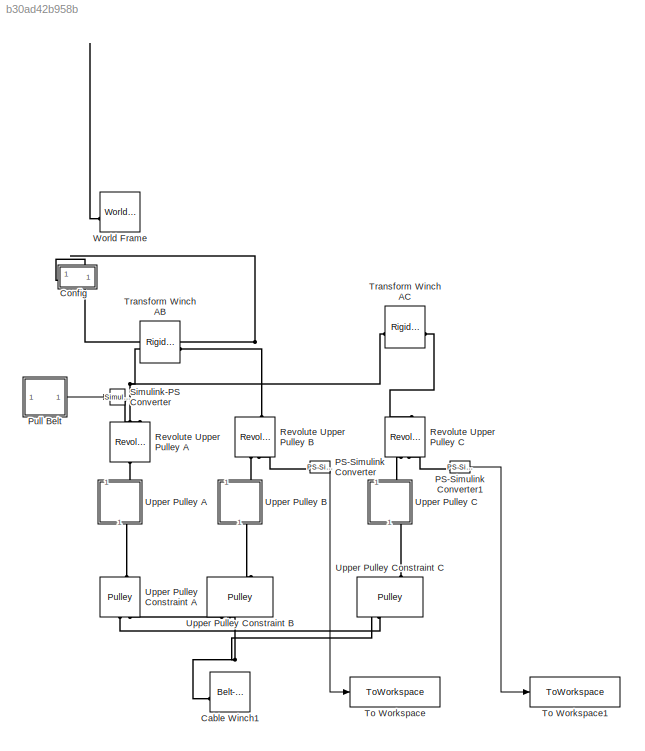
MODEL slx_b30ad42b958b
KIND model
CONFIG AbsTol = auto
CONFIG EnableMultiTasking = off
CONFIG FixedStep = auto
CONFIG MaxStep = 1e-2
CONFIG MinStep = auto
CONFIG RelTol = 1e-3
CONFIG SampleTimeConstraint = Unconstrained
CONFIG SolverName = ode15s
CONFIG StartTime = 0.0
CONFIG StopTime = 10
BLOCK [Reference] Cable Winch1  REF=sm_lib/Belts and Cables/Belt-Cable
Properties
  NameLocation = top
  SourceBlock = sm_lib/Belts and Cables/Belt-Cable\nProperties
  SourceType = Belt-Cable\nProperties
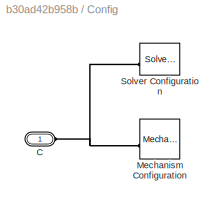
BLOCK [SubSystem] Config
BLOCK [PMIOPort] Config/C
  Side = Left
BLOCK [Reference] Config/Mechanism Configuration  REF=sm_lib/Utilities/Mechanism
Configuration
  SourceBlock = sm_lib/Utilities/Mechanism\nConfiguration
  SourceType = Mechanism\nConfiguration
BLOCK [Reference] Config/Solver Configuration  REF=nesl_utility/Solver
Configuration
  SourceBlock = nesl_utility/Solver\nConfiguration
  SourceType = Solver\nConfiguration
BLOCK [Reference] PS-Simulink Converter  REF=nesl_utility/PS-Simulink
Converter
  SourceBlock = nesl_utility/PS-Simulink\nConverter
  SourceType = PS-Simulink\nConverter
BLOCK [Reference] PS-Simulink Converter1  REF=nesl_utility/PS-Simulink
Converter
  SourceBlock = nesl_utility/PS-Simulink\nConverter
  SourceType = PS-Simulink\nConverter
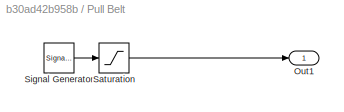
BLOCK [SubSystem] Pull Belt
BLOCK [Outport] Pull Belt/Out1
BLOCK [Saturate] Pull Belt/Saturation
  LowerLimit = 0
  UpperLimit = inf
BLOCK [SignalGenerator] Pull Belt/Signal Generator
  Amplitude = v_in
  Units = rad/sec
BLOCK [Reference] Revolute Upper Pulley A  REF=sm_lib/Joints/Revolute Joint
  NameLocation = right
  SourceBlock = sm_lib/Joints/Revolute Joint
  SourceType = Revolute Joint
BLOCK [Reference] Revolute Upper Pulley B  REF=sm_lib/Joints/Revolute Joint
  NameLocation = right
  SourceBlock = sm_lib/Joints/Revolute Joint
  SourceType = Revolute Joint
BLOCK [Reference] Revolute Upper Pulley C  REF=sm_lib/Joints/Revolute Joint
  NameLocation = right
  SourceBlock = sm_lib/Joints/Revolute Joint
  SourceType = Revolute Joint
BLOCK [Reference] Simulink-PS Converter  REF=nesl_utility/Simulink-PS
Converter
  SourceBlock = nesl_utility/Simulink-PS\nConverter
  SourceType = Simulink-PS\nConverter
BLOCK [ToWorkspace] To Workspace
  FixptAsFi = on
  MaxDataPoints = inf
  SampleTime = -1
  VariableName = vB
BLOCK [ToWorkspace] To Workspace1
  FixptAsFi = on
  MaxDataPoints = inf
  SampleTime = -1
  VariableName = vC
BLOCK [Reference] Transform Winch AB  REF=sm_lib/Frames and
Transforms/Rigid
Transform
  NameLocation = top
  SourceBlock = sm_lib/Frames and\nTransforms/Rigid\nTransform
  SourceType = Rigid\nTransform
BLOCK [Reference] Transform Winch AC  REF=sm_lib/Frames and
Transforms/Rigid
Transform
  NameLocation = top
  SourceBlock = sm_lib/Frames and\nTransforms/Rigid\nTransform
  SourceType = Rigid\nTransform
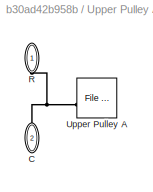
BLOCK [SubSystem] Upper Pulley A
  NameLocation = right
BLOCK [PMIOPort] Upper Pulley A/C
  NameLocation = left
  Port = 2
  Side = Right
BLOCK [PMIOPort] Upper Pulley A/R
  NameLocation = left
  Side = Left
BLOCK [Reference] Upper Pulley A/Upper Pulley A   REF=sm_lib/Body Elements/File Solid
  SourceBlock = sm_lib/Body Elements/File Solid
  SourceType = File Solid
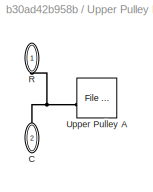
BLOCK [SubSystem] Upper Pulley B
  NameLocation = right
BLOCK [PMIOPort] Upper Pulley B/C
  NameLocation = left
  Port = 2
  Side = Right
BLOCK [PMIOPort] Upper Pulley B/R
  NameLocation = left
  Side = Left
BLOCK [Reference] Upper Pulley B/Upper Pulley A   REF=sm_lib/Body Elements/File Solid
  SourceBlock = sm_lib/Body Elements/File Solid
  SourceType = File Solid
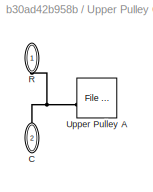
BLOCK [SubSystem] Upper Pulley C
  NameLocation = right
BLOCK [PMIOPort] Upper Pulley C/C
  NameLocation = left
  Port = 2
  Side = Right
BLOCK [PMIOPort] Upper Pulley C/R
  NameLocation = left
  Side = Left
BLOCK [Reference] Upper Pulley C/Upper Pulley A   REF=sm_lib/Body Elements/File Solid
  SourceBlock = sm_lib/Body Elements/File Solid
  SourceType = File Solid
BLOCK [Reference] Upper Pulley Constraint A  REF=sm_lib/Belts and Cables/Pulley
  NameLocation = right
  SourceBlock = sm_lib/Belts and Cables/Pulley
  SourceType = Pulley
BLOCK [Reference] Upper Pulley Constraint B  REF=sm_lib/Belts and Cables/Pulley
  NameLocation = right
  SourceBlock = sm_lib/Belts and Cables/Pulley
  SourceType = Pulley
BLOCK [Reference] Upper Pulley Constraint C  REF=sm_lib/Belts and Cables/Pulley
  NameLocation = right
  SourceBlock = sm_lib/Belts and Cables/Pulley
  SourceType = Pulley
BLOCK [Reference] World Frame  REF=sm_lib/Frames and
Transforms/World Frame
  SourceBlock = sm_lib/Frames and\nTransforms/World Frame
  SourceType = World Frame
LINE PS-Simulink Converter1:1 -> To Workspace1:1
LINE PS-Simulink Converter:1 -> To Workspace:1
LINE Pull Belt/Saturation:1 -> Pull Belt/Out1:1
LINE Pull Belt/Signal Generator:1 -> Pull Belt/Saturation:1
LINE Pull Belt:1 -> Simulink-PS Converter:1
PNET net1: Cable Winch1:LConn1 -- Upper Pulley Constraint B:RConn2 -- Upper Pulley Constraint C:RConn1
PNET net2: Config/C:RConn1 -- Config/Mechanism Configuration:RConn1 -- Config/Solver Configuration:RConn1
PNET net3: Config:LConn1 -- Revolute Upper Pulley B:LConn1 -- Transform Winch AB:LConn1 -- World Frame:RConn1
PLINE PS-Simulink Converter1:LConn1 -- Revolute Upper Pulley C:RConn2
PLINE PS-Simulink Converter:LConn1 -- Revolute Upper Pulley B:RConn2
PNET net4: Revolute Upper Pulley A:LConn1 -- Transform Winch AB:RConn1 -- Transform Winch AC:RConn1
PLINE Revolute Upper Pulley A:LConn2 -- Simulink-PS Converter:RConn1
PLINE Revolute Upper Pulley A:RConn1 -- Upper Pulley A:LConn1
PLINE Revolute Upper Pulley B:RConn1 -- Upper Pulley B:LConn1
PLINE Revolute Upper Pulley C:LConn1 -- Transform Winch AC:LConn1
PLINE Revolute Upper Pulley C:RConn1 -- Upper Pulley C:LConn1
PNET net5: Upper Pulley A/C:RConn1 -- Upper Pulley A/R:RConn1 -- Upper Pulley A/Upper Pulley A :LConn1
PLINE Upper Pulley A:RConn1 -- Upper Pulley Constraint A:LConn1
PNET net6: Upper Pulley B/C:RConn1 -- Upper Pulley B/R:RConn1 -- Upper Pulley B/Upper Pulley A :LConn1
PLINE Upper Pulley B:RConn1 -- Upper Pulley Constraint B:LConn1
PNET net7: Upper Pulley C/C:RConn1 -- Upper Pulley C/R:RConn1 -- Upper Pulley C/Upper Pulley A :LConn1
PLINE Upper Pulley C:RConn1 -- Upper Pulley Constraint C:LConn1
PLINE Upper Pulley Constraint A:RConn1 -- Upper Pulley Constraint C:RConn2
PLINE Upper Pulley Constraint A:RConn2 -- Upper Pulley Constraint B:RConn1
note: PNET lines group multi-terminal physical nets as a canonical sorted terminal list (undirected conserving connections); 2-terminal nets keep the pairwise PLINE form
